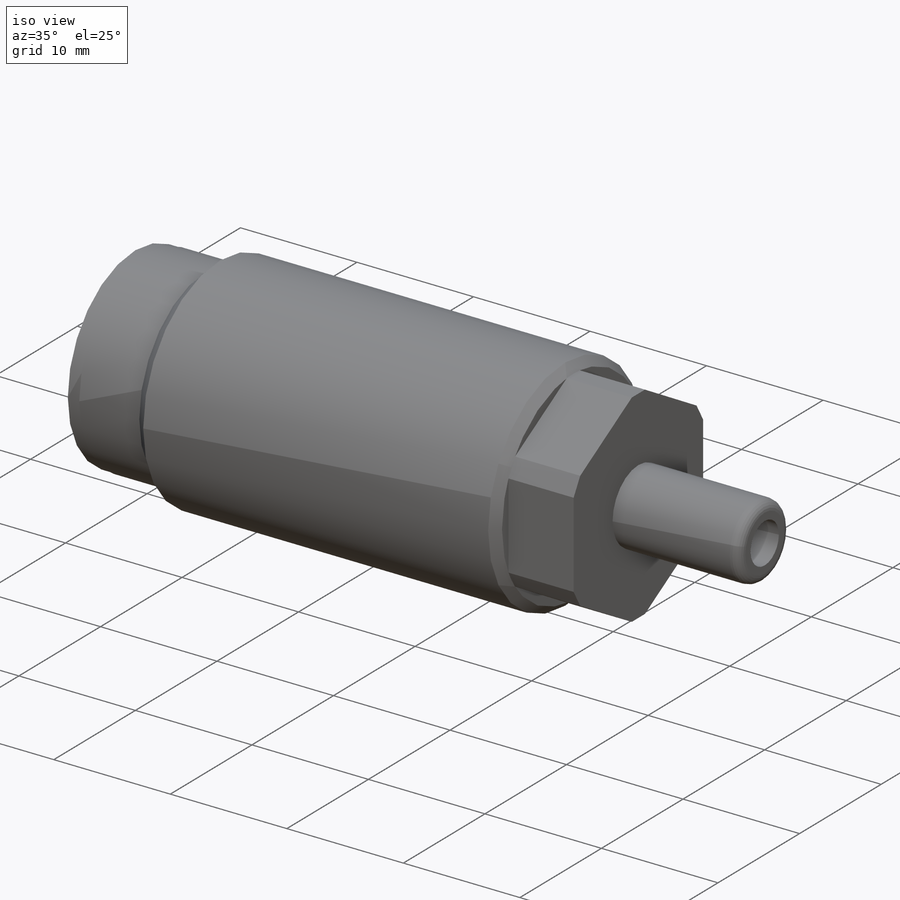
[diagram: iso view]
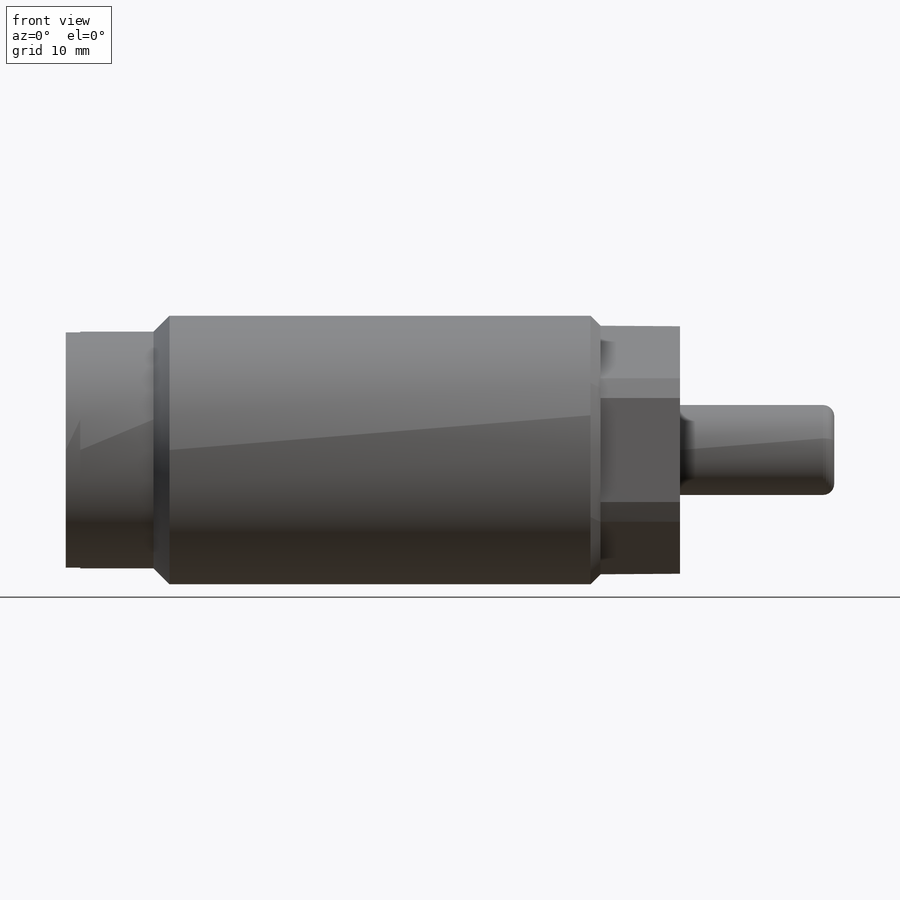
[diagram: front view]
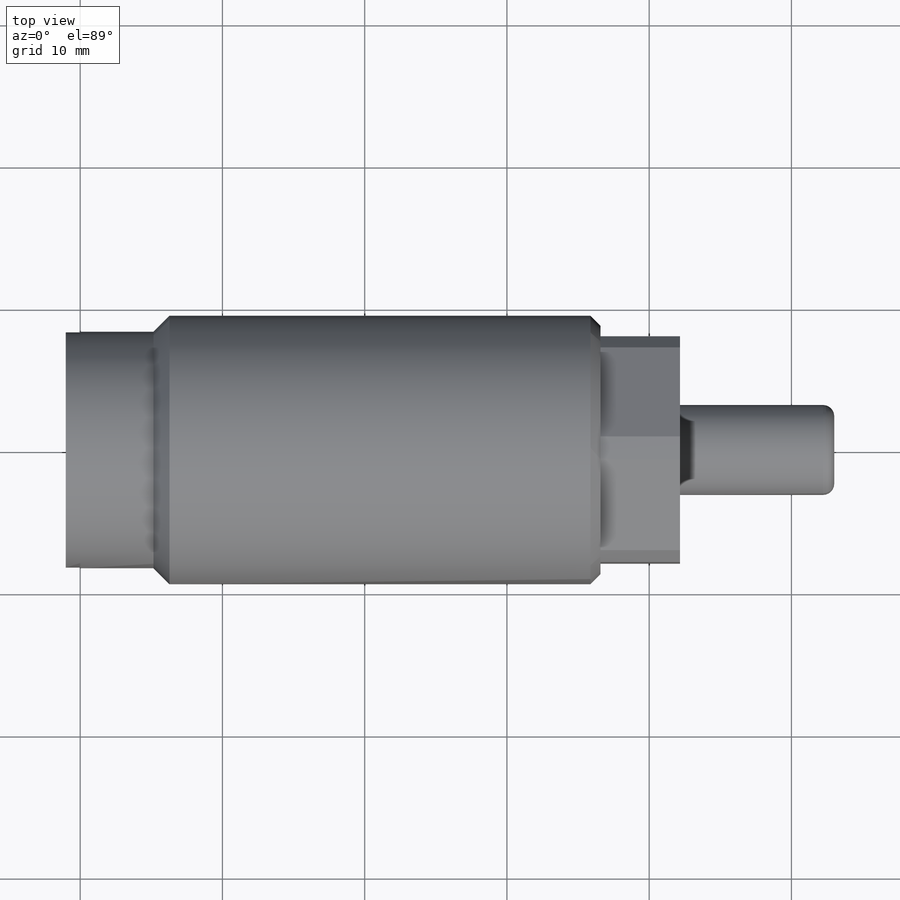
[diagram: top view]
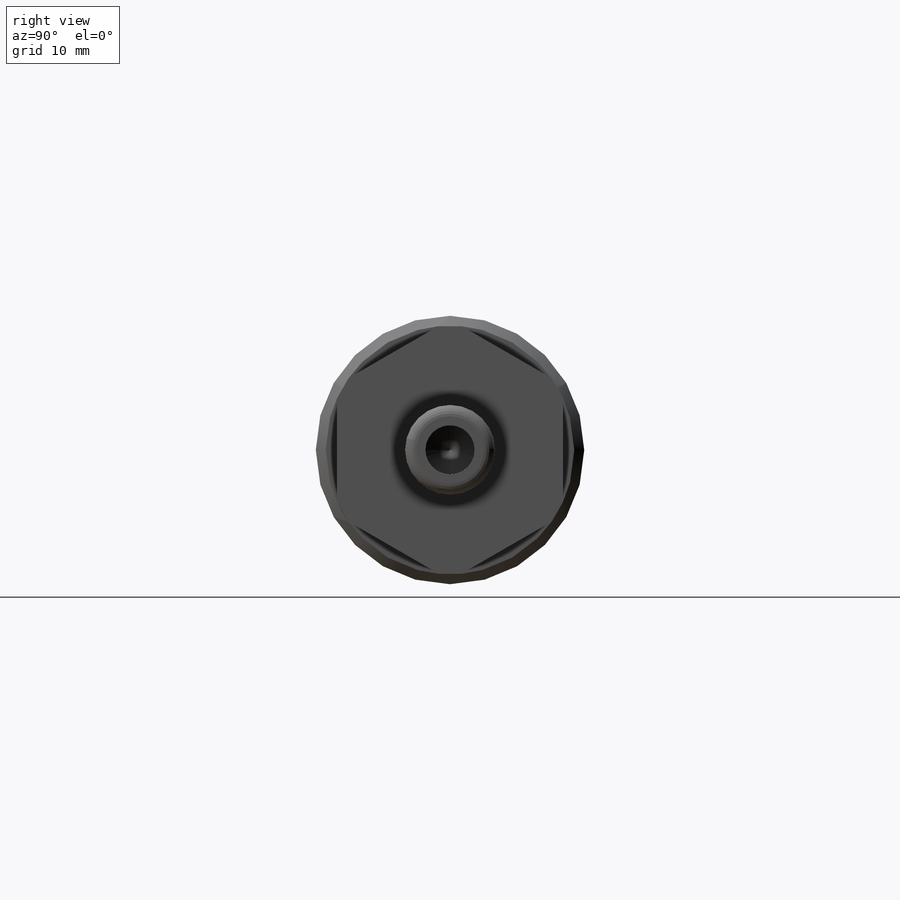
[diagram: right view]
SOLIDWORKS PART (.sldprt)
format: sldprt  version: not decoded by parser v0  size: 355,328 bytes
history: native  units: mm
features: sketch x9, revolve x3, cut_revolve x3, fillet x2, material x1, thread x1, cut_extrude x1, hole x1 (+11 scaffold rows collapsed)
feature tree (32):
  scaffold x11  (default folders/planes/origin — collapsed)
  material  "Alloy Steel"
  sketch  "Sketch1"  dims[D1=42.164mm D2=18.8722mm]
  revolve  "Revolve1"  Angle=360deg
  sketch  "Sketch2"  dims[D1=1.016mm D2=7.9248mm]
  cut_revolve  "Cut-Revolve1"  Angle=360deg
  sketch  "Sketch3"  dims[c1.D1=5.1562mm c1.D2=~6.20512mm c2.D2=45.0deg c2.D3=16.637mm]
  cut_revolve  "Cut-Revolve2"  [1 undecoded]
  thread  "Cosmetic Thread1"  Diameter=15.637mm  [1 undecoded]
  sketch  "Sketch4"  dims[c1.D1=5.588mm c1.D2=~1.418404mm c2.D2=45.0deg c2.D3=17.4752mm]
  cut_revolve  "Cut-Revolve3"  Angle=360deg
  sketch  "Sketch5"  dims[c1.D1=15.875mm c1.D2=~4.79469mm c2.D2=120.0deg c2.D3=~4.317733mm c3.D3=120.0deg]
  cut_extrude  "Cut-Extrude1"  Depth=5.588mm
  sketch  "Sketch6"  dims[D1=53.0098mm D2=6.3246mm D3=10.8458mm]
  revolve  "Revolve3"  Angle=360deg
  fillet  "Fillet1"  Radius=0.7874mm
  hole  "#8-32 Tapped Hole1"  Diameter=3.4544mm Depth=10.668mm
  sketch  "Sketch11"
  sketch  "Sketch10"  dims[hole-wizard template sketch: 47 standard entries collapsed; hole parameters kept: c15.Tap Drill Depth=10.668mm c15.D3=~14.816244mm c15.Drill Angle=118.0deg]
  fillet  "Hole Thread1"  Radius=6.35mm
  sketch  "Sketch12"  dims[D1=1.016mm D2=16.5354mm D3=11.4808mm]
  revolve  "Revolve4"  Angle=360deg
decode coverage: 18 of 20 modeling features carry decoded parameters
note: ~ marks probable driven/reference dimensions
note: 2 parameter values undecoded
note: suppression state not decoded; provenance and decode notes live in map.json
